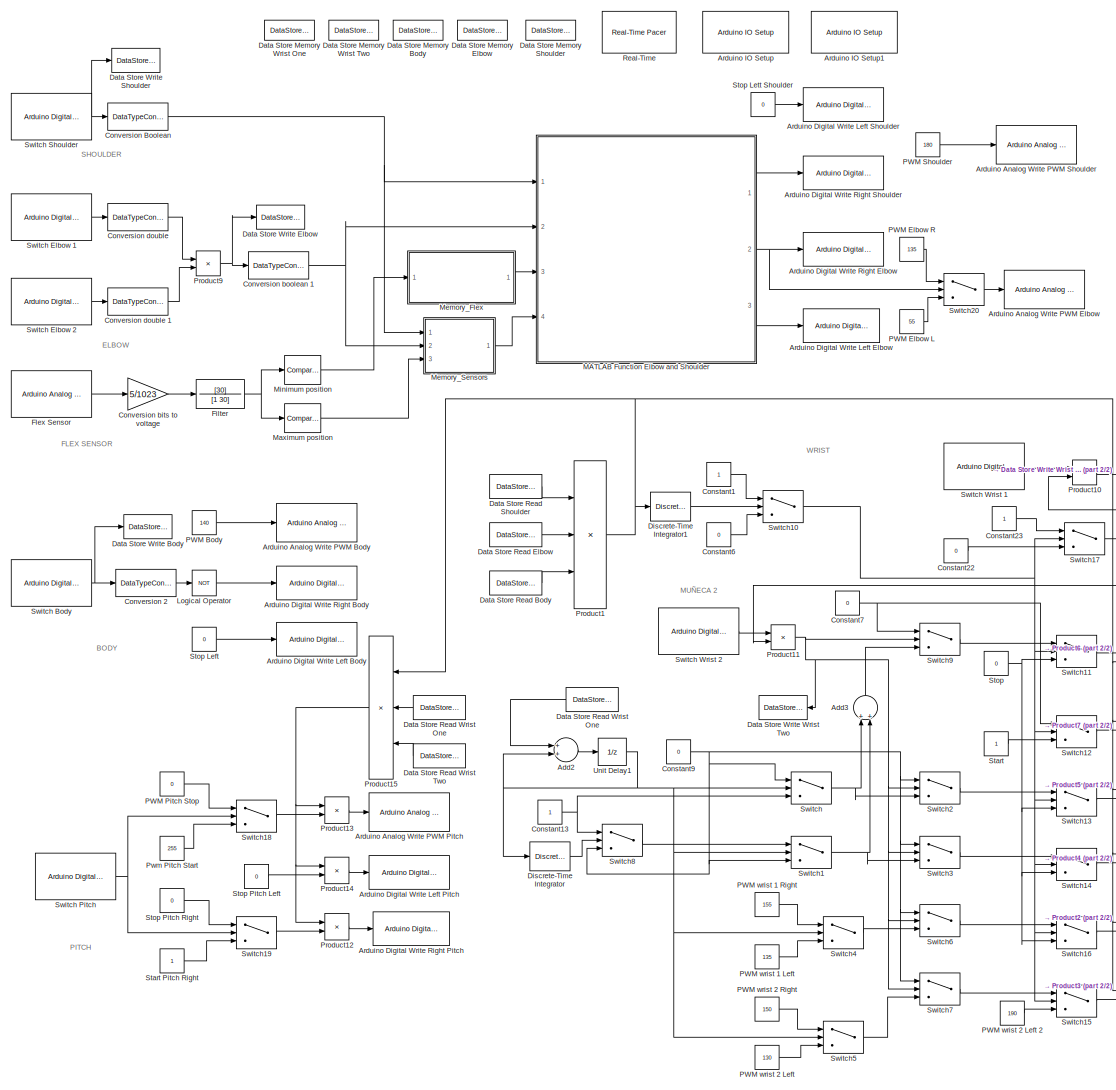
[diagram: root canvas - part 1/2, most of the canvas]
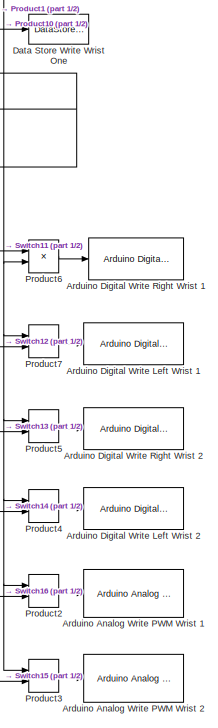
[diagram: root canvas - part 2/2, bottom right region]
MODEL slx_b9884430eb77
KIND model
CONFIG AbsTol = auto
CONFIG FixedStep = 0.002
CONFIG MaxStep = auto
CONFIG MinStep = auto
CONFIG RelTol = 1e-3
CONFIG SampleTimeConstraint = Unconstrained
CONFIG Solver = ode45
CONFIG SolverMode = Auto
CONFIG SolverName = ode45
CONFIG StartTime = 0.0
CONFIG StopTime = inf
BLOCK [Sum] Add2
  InputSameDT = off
  OutDataTypeStr = Inherit: Inherit via internal rule
  Ports = [2, 1]
  SaturateOnIntegerOverflow = off
BLOCK [Sum] Add3
  InputSameDT = off
  OutDataTypeStr = Inherit: Inherit via internal rule
  Ports = [2, 1]
  SaturateOnIntegerOverflow = off
BLOCK [Reference] Arduino Analog Write PWM Body  REF=arduino_io_lib/Arduino Analog Write
  Ports = [1]
  SourceBlock = arduino_io_lib/Arduino Analog Write
  SourceType = Arduino IO analog Write (PWM)
  T = Ts
  arduinoPin = 9
  arduinoVar = Temporary arduino variable: Arduino1
BLOCK [Reference] Arduino Analog Write PWM Elbow  REF=arduino_io_lib/Arduino Analog Write
  Ports = [1]
  SourceBlock = arduino_io_lib/Arduino Analog Write
  SourceType = Arduino IO analog Write (PWM)
  T = Ts
  arduinoPin = 11
  arduinoVar = Temporary arduino variable: Arduino1
BLOCK [Reference] Arduino Analog Write PWM Pitch  REF=arduino_io_lib/Arduino Analog Write
  Ports = [1]
  SourceBlock = arduino_io_lib/Arduino Analog Write
  SourceType = Arduino IO analog Write (PWM)
  T = Ts
  arduinoPin = 9
  arduinoVar = Temporary arduino variable: Arduino2
BLOCK [Reference] Arduino Analog Write PWM Shoulder  REF=arduino_io_lib/Arduino Analog Write
  Ports = [1]
  SourceBlock = arduino_io_lib/Arduino Analog Write
  SourceType = Arduino IO analog Write (PWM)
  T = Ts
  arduinoPin = 10
  arduinoVar = Temporary arduino variable: Arduino1
BLOCK [Reference] Arduino Analog Write PWM Wrist 1  REF=arduino_io_lib/Arduino Analog Write
  Ports = [1]
  SourceBlock = arduino_io_lib/Arduino Analog Write
  SourceType = Arduino IO analog Write (PWM)
  T = Ts
  arduinoPin = 11
  arduinoVar = Temporary arduino variable: Arduino2
BLOCK [Reference] Arduino Analog Write PWM Wrist 2  REF=arduino_io_lib/Arduino Analog Write
  Ports = [1]
  SourceBlock = arduino_io_lib/Arduino Analog Write
  SourceType = Arduino IO analog Write (PWM)
  T = Ts
  arduinoPin = 10
  arduinoVar = Temporary arduino variable: Arduino2
BLOCK [Reference] Arduino Digital Write Left Body  REF=arduino_io_lib/Arduino Digital Write
  Ports = [1]
  SourceBlock = arduino_io_lib/Arduino Digital Write
  SourceType = Arduino IO digital Write
  T = Ts
  arduinoPin = 7
  arduinoVar = Temporary arduino variable: Arduino1
BLOCK [Reference] Arduino Digital Write Left Elbow  REF=arduino_io_lib/Arduino Digital Write
  Ports = [1]
  SourceBlock = arduino_io_lib/Arduino Digital Write
  SourceType = Arduino IO digital Write
  T = Ts
  arduinoPin = 12
  arduinoVar = Temporary arduino variable: Arduino1
BLOCK [Reference] Arduino Digital Write Left Pitch  REF=arduino_io_lib/Arduino Digital Write
  Ports = [1]
  SourceBlock = arduino_io_lib/Arduino Digital Write
  SourceType = Arduino IO digital Write
  T = Ts
  arduinoPin = 6
  arduinoVar = Temporary arduino variable: Arduino2
BLOCK [Reference] Arduino Digital Write Left Shoulder  REF=arduino_io_lib/Arduino Digital Write
  Ports = [1]
  SourceBlock = arduino_io_lib/Arduino Digital Write
  SourceType = Arduino IO digital Write
  T = Ts
  arduinoPin = 5
  arduinoVar = Temporary arduino variable: Arduino1
BLOCK [Reference] Arduino Digital Write Left Wrist 1  REF=arduino_io_lib/Arduino Digital Write
  Ports = [1]
  SourceBlock = arduino_io_lib/Arduino Digital Write
  SourceType = Arduino IO digital Write
  T = Ts
  arduinoPin = 4
  arduinoVar = Temporary arduino variable: Arduino2
BLOCK [Reference] Arduino Digital Write Left Wrist 2  REF=arduino_io_lib/Arduino Digital Write
  Ports = [1]
  SourceBlock = arduino_io_lib/Arduino Digital Write
  SourceType = Arduino IO digital Write
  T = Ts
  arduinoPin = 13
  arduinoVar = Temporary arduino variable: Arduino2
BLOCK [Reference] Arduino Digital Write Right Body  REF=arduino_io_lib/Arduino Digital Write
  Ports = [1]
  SourceBlock = arduino_io_lib/Arduino Digital Write
  SourceType = Arduino IO digital Write
  T = Ts
  arduinoPin = 6
  arduinoVar = Temporary arduino variable: Arduino1
BLOCK [Reference] Arduino Digital Write Right Elbow  REF=arduino_io_lib/Arduino Digital Write
  Ports = [1]
  SourceBlock = arduino_io_lib/Arduino Digital Write
  SourceType = Arduino IO digital Write
  T = Ts
  arduinoPin = 13
  arduinoVar = Temporary arduino variable: Arduino1
BLOCK [Reference] Arduino Digital Write Right Pitch  REF=arduino_io_lib/Arduino Digital Write
  Ports = [1]
  SourceBlock = arduino_io_lib/Arduino Digital Write
  SourceType = Arduino IO digital Write
  T = Ts
  arduinoPin = 7
  arduinoVar = Temporary arduino variable: Arduino2
BLOCK [Reference] Arduino Digital Write Right Shoulder  REF=arduino_io_lib/Arduino Digital Write
  Ports = [1]
  SourceBlock = arduino_io_lib/Arduino Digital Write
  SourceType = Arduino IO digital Write
  T = Ts
  arduinoPin = 4
  arduinoVar = Temporary arduino variable: Arduino1
BLOCK [Reference] Arduino Digital Write Right Wrist 1  REF=arduino_io_lib/Arduino Digital Write
  Ports = [1]
  SourceBlock = arduino_io_lib/Arduino Digital Write
  SourceType = Arduino IO digital Write
  T = Ts
  arduinoPin = 5
  arduinoVar = Temporary arduino variable: Arduino2
BLOCK [Reference] Arduino Digital Write Right Wrist 2  REF=arduino_io_lib/Arduino Digital Write
  Ports = [1]
  SourceBlock = arduino_io_lib/Arduino Digital Write
  SourceType = Arduino IO digital Write
  T = Ts
  arduinoPin = 12
  arduinoVar = Temporary arduino variable: Arduino2
BLOCK [Reference] Arduino IO Setup   REF=arduino_io_lib/Arduino IO Setup
  Ports = []
  Priority = 3
  SourceBlock = arduino_io_lib/Arduino IO Setup
  SourceType = Arduino IO Setup
  arduinoVar = Temporary arduino variable: Arduino1
  comPort = COM9
  workspaceVarName = a
BLOCK [Reference] Arduino IO Setup1  REF=arduino_io_lib/Arduino IO Setup
  Ports = []
  Priority = 3
  SourceBlock = arduino_io_lib/Arduino IO Setup
  SourceType = Arduino IO Setup
  arduinoVar = Temporary arduino variable: Arduino2
  comPort = COM3
  workspaceVarName = a
BLOCK [Constant] Constant1
BLOCK [Constant] Constant13
BLOCK [Constant] Constant22
  Value = 0
BLOCK [Constant] Constant23
BLOCK [Constant] Constant6
  Value = 0
BLOCK [Constant] Constant7
  Value = 0
BLOCK [Constant] Constant9
  Value = 0
BLOCK [DataTypeConversion] Conversion 2 
  OutDataTypeStr = boolean
  RndMeth = Floor
  SaturateOnIntegerOverflow = off
BLOCK [DataTypeConversion] Conversion Boolean
  OutDataTypeStr = boolean
  RndMeth = Floor
  SaturateOnIntegerOverflow = off
BLOCK [Gain] Conversion bits to voltage
  Gain = 5/1023
  OutDataTypeStr = Inherit: Inherit via internal rule
  ParamDataTypeStr = Inherit: Inherit via internal rule
  SaturateOnIntegerOverflow = off
BLOCK [DataTypeConversion] Conversion boolean 1
  OutDataTypeStr = boolean
  RndMeth = Floor
  SaturateOnIntegerOverflow = off
BLOCK [DataTypeConversion] Conversion double
  OutDataTypeStr = double
  RndMeth = Floor
  SaturateOnIntegerOverflow = off
BLOCK [DataTypeConversion] Conversion double 1 
  OutDataTypeStr = double
  RndMeth = Floor
  SaturateOnIntegerOverflow = off
BLOCK [DataStoreMemory] Data Store Memory Body
  DataStoreName = Body
  ReadBeforeWriteMsg = warning
  ShowAdditionalParam = off
  WriteAfterReadMsg = warning
  WriteAfterWriteMsg = warning
BLOCK [DataStoreMemory] Data Store Memory Elbow
  DataStoreName = Elbow
  ReadBeforeWriteMsg = warning
  ShowAdditionalParam = off
  WriteAfterReadMsg = warning
  WriteAfterWriteMsg = warning
BLOCK [DataStoreMemory] Data Store Memory Shoulder
  DataStoreName = Shoulder
  ReadBeforeWriteMsg = warning
  ShowAdditionalParam = off
  WriteAfterReadMsg = warning
  WriteAfterWriteMsg = warning
BLOCK [DataStoreMemory] Data Store Memory Wrist One
  DataStoreName = Wrist_One
  ReadBeforeWriteMsg = warning
  ShowAdditionalParam = off
  WriteAfterReadMsg = warning
  WriteAfterWriteMsg = warning
BLOCK [DataStoreMemory] Data Store Memory Wrist Two
  DataStoreName = Wrist_Two
  ReadBeforeWriteMsg = warning
  ShowAdditionalParam = off
  WriteAfterReadMsg = warning
  WriteAfterWriteMsg = warning
BLOCK [DataStoreRead] Data Store Read Body
  DataStoreName = Body
  Ports = [0, 1]
BLOCK [DataStoreRead] Data Store Read Elbow
  DataStoreName = Elbow
  Ports = [0, 1]
BLOCK [DataStoreRead] Data Store Read Shoulder
  DataStoreName = Shoulder
  Ports = [0, 1]
BLOCK [DataStoreRead] Data Store Read Wrist One
  DataStoreName = Wrist_One
  Ports = [0, 1]
BLOCK [DataStoreRead] Data Store Read Wrist One 
  DataStoreName = Wrist_One
  Ports = [0, 1]
BLOCK [DataStoreRead] Data Store Read Wrist Two
  DataStoreName = Wrist_Two
  Ports = [0, 1]
BLOCK [DataStoreWrite] Data Store Write Body
  DataStoreName = Body
  Ports = [1]
BLOCK [DataStoreWrite] Data Store Write Elbow
  DataStoreName = Elbow
  Ports = [1]
BLOCK [DataStoreWrite] Data Store Write Shoulder
  DataStoreName = Shoulder
  Ports = [1]
BLOCK [DataStoreWrite] Data Store Write Wrist One
  DataStoreName = Wrist_One
  Ports = [1]
BLOCK [DataStoreWrite] Data Store Write Wrist Two 
  DataStoreName = Wrist_Two
  Ports = [1]
BLOCK [DiscreteIntegrator] Discrete-Time Integrator
  ICPrevOutput = DiscIntNeverNeededParam
  ICPrevScaledInput = DiscIntNeverNeededParam
  InitialConditionSetting = State (most efficient)
  LimitOutput = on
  Ports = [1, 1]
  SampleTime = Ts
  UpperSaturationLimit = 15
BLOCK [DiscreteIntegrator] Discrete-Time Integrator1
  ICPrevOutput = DiscIntNeverNeededParam
  ICPrevScaledInput = DiscIntNeverNeededParam
  InitialConditionSetting = State (most efficient)
  LimitOutput = on
  Ports = [1, 1]
  SampleTime = Ts
  UpperSaturationLimit = 15
BLOCK [TransferFcn] Filter 
  Denominator = [1 30]
  Numerator = [30]
BLOCK [Reference] Flex Sensor   REF=arduino_io_lib/Arduino Analog Read
  Ports = [0, 1]
  SourceBlock = arduino_io_lib/Arduino Analog Read
  SourceType = Arduino IO Analog Read
  T = Ts
  arduinoPin = 1
  arduinoVar = Temporary arduino variable: Arduino2
BLOCK [Logic] Logical Operator
  AllPortsSameDT = off
  Operator = NOT
  OutDataTypeStr = boolean
  Ports = [1, 1]
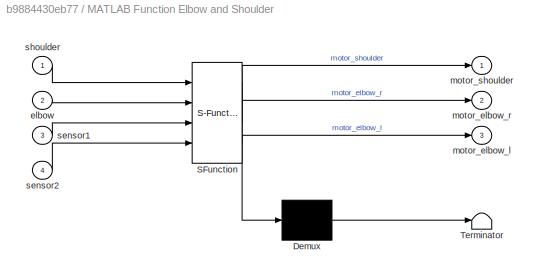
BLOCK [SubSystem] MATLAB Function Elbow and Shoulder
  ErrorFcn = Stateflow.Translate.translate
  PermitHierarchicalResolution = ParametersOnly
  Ports = [4, 3]
  RequestExecContextInheritance = off
  SFBlockType = MATLAB Function
  TreatAsAtomicUnit = on
  Variant = off
BLOCK [Demux] MATLAB Function Elbow and Shoulder/ Demux 
  Outputs = 1
  Ports = [1, 1]
BLOCK [S-Function] MATLAB Function Elbow and Shoulder/ SFunction 
  EnableBusSupport = on
  FunctionName = sf_sfun
  PortCounts = [4 4]
  Ports = [4, 4]
  SFunctionDeploymentMode = off
  Tag = Stateflow S-Function Starting_Position_2015A 1
BLOCK [Terminator] MATLAB Function Elbow and Shoulder/ Terminator 
BLOCK [Inport] MATLAB Function Elbow and Shoulder/elbow
  IconDisplay = Port number
  Port = 2
BLOCK [Outport] MATLAB Function Elbow and Shoulder/motor_elbow_l
  IconDisplay = Port number
  Port = 3
BLOCK [Outport] MATLAB Function Elbow and Shoulder/motor_elbow_r
  IconDisplay = Port number
  Port = 2
BLOCK [Outport] MATLAB Function Elbow and Shoulder/motor_shoulder
  IconDisplay = Port number
BLOCK [Inport] MATLAB Function Elbow and Shoulder/sensor1
  IconDisplay = Port number
  Port = 3
BLOCK [Inport] MATLAB Function Elbow and Shoulder/sensor2
  IconDisplay = Port number
  Port = 4
BLOCK [Inport] MATLAB Function Elbow and Shoulder/shoulder
  IconDisplay = Port number
BLOCK [Reference] Maximum position  REF=simulink/Logic and Bit
Operations/Compare
To Constant
  OutDataTypeStr = boolean
  Ports = [1, 1]
  SourceBlock = simulink/Logic and Bit\nOperations/Compare\nTo Constant
  SourceType = Compare To Constant
  ZeroCross = on
  const = 2.15
  relop = >=
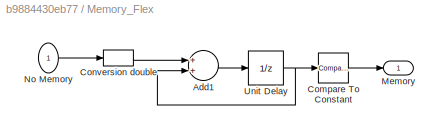
BLOCK [SubSystem] Memory_Flex 
  Ports = [1, 1]
  RequestExecContextInheritance = off
  Variant = off
BLOCK [Sum] Memory_Flex /Add1
  InputSameDT = off
  OutDataTypeStr = Inherit: Inherit via internal rule
  Ports = [2, 1]
  SaturateOnIntegerOverflow = off
BLOCK [Reference] Memory_Flex /Compare To Constant  REF=simulink/Logic and Bit
Operations/Compare
To Constant
  OutDataTypeStr = boolean
  Ports = [1, 1]
  SourceBlock = simulink/Logic and Bit\nOperations/Compare\nTo Constant
  SourceType = Compare To Constant
  ZeroCross = on
  const = 1
  relop = >=
BLOCK [DataTypeConversion] Memory_Flex /Conversion double
  OutDataTypeStr = double
  RndMeth = Floor
  SaturateOnIntegerOverflow = off
BLOCK [Outport] Memory_Flex /Memory 
  IconDisplay = Port number
BLOCK [Inport] Memory_Flex /No Memory
  IconDisplay = Port number
BLOCK [UnitDelay] Memory_Flex /Unit Delay
  InputProcessing = Elements as channels (sample based)
  SampleTime = Ts
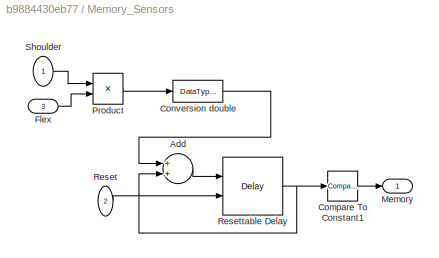
BLOCK [SubSystem] Memory_Sensors
  Ports = [3, 1]
  RequestExecContextInheritance = off
  Variant = off
BLOCK [Sum] Memory_Sensors/Add
  InputSameDT = off
  OutDataTypeStr = Inherit: Inherit via internal rule
  Ports = [2, 1]
  SaturateOnIntegerOverflow = off
BLOCK [Reference] Memory_Sensors/Compare To Constant1  REF=simulink/Logic and Bit
Operations/Compare
To Constant
  OutDataTypeStr = boolean
  Ports = [1, 1]
  SourceBlock = simulink/Logic and Bit\nOperations/Compare\nTo Constant
  SourceType = Compare To Constant
  ZeroCross = on
  const = 1
  relop = >=
BLOCK [DataTypeConversion] Memory_Sensors/Conversion double 
  OutDataTypeStr = double
  RndMeth = Floor
  SaturateOnIntegerOverflow = off
BLOCK [Inport] Memory_Sensors/Flex
  IconDisplay = Port number
  Port = 3
BLOCK [Outport] Memory_Sensors/Memory
  IconDisplay = Port number
BLOCK [Product] Memory_Sensors/Product
  InputSameDT = off
  OutDataTypeStr = Inherit: Inherit via internal rule
  Ports = [2, 1]
  RndMeth = Floor
  SaturateOnIntegerOverflow = off
BLOCK [Inport] Memory_Sensors/Reset
  IconDisplay = Port number
  Port = 2
BLOCK [Delay] Memory_Sensors/Resettable Delay
  DelayLength = 1
  ExternalReset = Rising
  InputPortMap = u0,r5
  Ports = [2, 1]
  SampleTime = Ts
BLOCK [Inport] Memory_Sensors/Shoulder
  IconDisplay = Port number
BLOCK [Reference] Minimum position  REF=simulink/Logic and Bit
Operations/Compare
To Constant
  OutDataTypeStr = boolean
  Ports = [1, 1]
  SourceBlock = simulink/Logic and Bit\nOperations/Compare\nTo Constant
  SourceType = Compare To Constant
  ZeroCross = on
  const = 2.65
  relop = >=
BLOCK [Constant] PWM Body
  Value = 140
BLOCK [Constant] PWM Elbow L
  Value = 55
BLOCK [Constant] PWM Elbow R
  Value = 135
BLOCK [Constant] PWM Pitch Stop
  Value = 0
BLOCK [Constant] PWM Shoulder
  Value = 180
BLOCK [Constant] PWM wrist 1 Left
  Value = 135
BLOCK [Constant] PWM wrist 1 Right
  Value = 155
BLOCK [Constant] PWM wrist 2 Left
  Value = 130
BLOCK [Constant] PWM wrist 2 Left 2
  Value = 190
BLOCK [Constant] PWM wrist 2 Right
  Value = 150
BLOCK [Product] Product1
  InputSameDT = off
  Inputs = 3
  OutDataTypeStr = Inherit: Inherit via internal rule
  Ports = [3, 1]
  RndMeth = Floor
  SaturateOnIntegerOverflow = off
BLOCK [Product] Product10
  InputSameDT = off
  OutDataTypeStr = Inherit: Inherit via internal rule
  Ports = [2, 1]
  RndMeth = Floor
  SaturateOnIntegerOverflow = off
BLOCK [Product] Product11
  InputSameDT = off
  OutDataTypeStr = Inherit: Inherit via internal rule
  Ports = [2, 1]
  RndMeth = Floor
  SaturateOnIntegerOverflow = off
BLOCK [Product] Product12
  InputSameDT = off
  OutDataTypeStr = Inherit: Inherit via internal rule
  Ports = [2, 1]
  RndMeth = Floor
  SaturateOnIntegerOverflow = off
BLOCK [Product] Product13
  InputSameDT = off
  OutDataTypeStr = Inherit: Inherit via internal rule
  Ports = [2, 1]
  RndMeth = Floor
  SaturateOnIntegerOverflow = off
BLOCK [Product] Product14
  InputSameDT = off
  OutDataTypeStr = Inherit: Inherit via internal rule
  Ports = [2, 1]
  RndMeth = Floor
  SaturateOnIntegerOverflow = off
BLOCK [Product] Product15
  InputSameDT = off
  Inputs = 3
  OutDataTypeStr = Inherit: Inherit via internal rule
  Ports = [3, 1]
  RndMeth = Floor
  SaturateOnIntegerOverflow = off
BLOCK [Product] Product2
  InputSameDT = off
  OutDataTypeStr = Inherit: Inherit via internal rule
  Ports = [2, 1]
  RndMeth = Floor
  SaturateOnIntegerOverflow = off
BLOCK [Product] Product3
  InputSameDT = off
  OutDataTypeStr = Inherit: Inherit via internal rule
  Ports = [2, 1]
  RndMeth = Floor
  SaturateOnIntegerOverflow = off
BLOCK [Product] Product4
  InputSameDT = off
  OutDataTypeStr = Inherit: Inherit via internal rule
  Ports = [2, 1]
  RndMeth = Floor
  SaturateOnIntegerOverflow = off
BLOCK [Product] Product5
  InputSameDT = off
  OutDataTypeStr = Inherit: Inherit via internal rule
  Ports = [2, 1]
  RndMeth = Floor
  SaturateOnIntegerOverflow = off
BLOCK [Product] Product6
  InputSameDT = off
  OutDataTypeStr = Inherit: Inherit via internal rule
  Ports = [2, 1]
  RndMeth = Floor
  SaturateOnIntegerOverflow = off
BLOCK [Product] Product7
  InputSameDT = off
  OutDataTypeStr = Inherit: Inherit via internal rule
  Ports = [2, 1]
  RndMeth = Floor
  SaturateOnIntegerOverflow = off
BLOCK [Product] Product9
  InputSameDT = off
  OutDataTypeStr = Inherit: Inherit via internal rule
  Ports = [2, 1]
  RndMeth = Floor
  SaturateOnIntegerOverflow = off
BLOCK [Constant] Pwm Pitch Start
  Value = 255
BLOCK [Reference] Real-Time   REF=arduino_io_lib/Real-Time Pacer
  Ports = []
  SourceBlock = arduino_io_lib/Real-Time Pacer
  SourceType = RealTime_Pacer
  simTimePerRealTime = 1
BLOCK [Constant] Start
BLOCK [Constant] Start Pitch Right
BLOCK [Constant] Stop
  Value = 0
BLOCK [Constant] Stop Left
  Value = 0
BLOCK [Constant] Stop Lett Shoulder
  Value = 0
BLOCK [Constant] Stop Pitch Left 
  Value = 0
BLOCK [Constant] Stop Pitch Right
  Value = 0
BLOCK [Switch] Switch
  Criteria = u2 > Threshold
  InputSameDT = off
  SaturateOnIntegerOverflow = off
  Threshold = 0.9
BLOCK [Reference] Switch Body  REF=arduino_io_lib/Arduino Digital Read
  Ports = [0, 1]
  SourceBlock = arduino_io_lib/Arduino Digital Read
  SourceType = Arduino IO digital read
  T = Ts
  arduinoPin = 28
  arduinoVar = Temporary arduino variable: Arduino2
BLOCK [Reference] Switch Elbow 1  REF=arduino_io_lib/Arduino Digital Read
  Ports = [0, 1]
  SourceBlock = arduino_io_lib/Arduino Digital Read
  SourceType = Arduino IO digital read
  T = Ts
  arduinoPin = 22
  arduinoVar = Temporary arduino variable: Arduino2
BLOCK [Reference] Switch Elbow 2  REF=arduino_io_lib/Arduino Digital Read
  Ports = [0, 1]
  SourceBlock = arduino_io_lib/Arduino Digital Read
  SourceType = Arduino IO digital read
  T = Ts
  arduinoPin = 24
  arduinoVar = Temporary arduino variable: Arduino2
BLOCK [Reference] Switch Pitch   REF=arduino_io_lib/Arduino Digital Read
  Ports = [0, 1]
  SourceBlock = arduino_io_lib/Arduino Digital Read
  SourceType = Arduino IO digital read
  T = Ts
  arduinoPin = 34
  arduinoVar = Temporary arduino variable: Arduino2
BLOCK [Reference] Switch Shoulder  REF=arduino_io_lib/Arduino Digital Read
  Ports = [0, 1]
  SourceBlock = arduino_io_lib/Arduino Digital Read
  SourceType = Arduino IO digital read
  T = Ts
  arduinoPin = 26
  arduinoVar = Temporary arduino variable: Arduino2
BLOCK [Reference] Switch Wrist 1   REF=arduino_io_lib/Arduino Digital Read
  Ports = [0, 1]
  SourceBlock = arduino_io_lib/Arduino Digital Read
  SourceType = Arduino IO digital read
  T = Ts
  arduinoPin = 32
  arduinoVar = Temporary arduino variable: Arduino2
BLOCK [Reference] Switch Wrist 2   REF=arduino_io_lib/Arduino Digital Read
  Ports = [0, 1]
  SourceBlock = arduino_io_lib/Arduino Digital Read
  SourceType = Arduino IO digital read
  T = Ts
  arduinoPin = 30
  arduinoVar = Temporary arduino variable: Arduino2
BLOCK [Switch] Switch1
  Criteria = u2 > Threshold
  InputSameDT = off
  SaturateOnIntegerOverflow = off
  Threshold = 0.9
BLOCK [Switch] Switch10
  Criteria = u2 > Threshold
  InputSameDT = off
  SaturateOnIntegerOverflow = off
  Threshold = 1
BLOCK [Switch] Switch11
  Criteria = u2 > Threshold
  InputSameDT = off
  SaturateOnIntegerOverflow = off
  Threshold = 0.9
BLOCK [Switch] Switch12
  Criteria = u2 > Threshold
  InputSameDT = off
  SaturateOnIntegerOverflow = off
  Threshold = 0.9
BLOCK [Switch] Switch13
  Criteria = u2 > Threshold
  InputSameDT = off
  SaturateOnIntegerOverflow = off
  Threshold = 0.9
BLOCK [Switch] Switch14
  Criteria = u2 > Threshold
  InputSameDT = off
  SaturateOnIntegerOverflow = off
  Threshold = 0.9
BLOCK [Switch] Switch15
  Criteria = u2 > Threshold
  InputSameDT = off
  SaturateOnIntegerOverflow = off
  Threshold = 0.9
BLOCK [Switch] Switch16
  Criteria = u2 > Threshold
  InputSameDT = off
  SaturateOnIntegerOverflow = off
  Threshold = 0.9
BLOCK [Switch] Switch17
  Criteria = u2 > Threshold
  InputSameDT = off
  SaturateOnIntegerOverflow = off
  Threshold = 0.9
BLOCK [Switch] Switch18
  Criteria = u2 > Threshold
  InputSameDT = off
  SaturateOnIntegerOverflow = off
  Threshold = 0.9
BLOCK [Switch] Switch19
  Criteria = u2 > Threshold
  InputSameDT = off
  SaturateOnIntegerOverflow = off
  Threshold = 0.9
BLOCK [Switch] Switch2
  Criteria = u2 > Threshold
  InputSameDT = off
  SaturateOnIntegerOverflow = off
  Threshold = 0.9
BLOCK [Switch] Switch20
  Criteria = u2 > Threshold
  InputSameDT = off
  SaturateOnIntegerOverflow = off
BLOCK [Switch] Switch3
  Criteria = u2 > Threshold
  InputSameDT = off
  SaturateOnIntegerOverflow = off
  Threshold = 0.9
BLOCK [Switch] Switch4
  Criteria = u2 > Threshold
  InputSameDT = off
  SaturateOnIntegerOverflow = off
  Threshold = 0.9
BLOCK [Switch] Switch5
  Criteria = u2 > Threshold
  InputSameDT = off
  SaturateOnIntegerOverflow = off
  Threshold = 0.9
BLOCK [Switch] Switch6
  Criteria = u2 > Threshold
  InputSameDT = off
  SaturateOnIntegerOverflow = off
  Threshold = 0.9
BLOCK [Switch] Switch7
  Criteria = u2 > Threshold
  InputSameDT = off
  SaturateOnIntegerOverflow = off
  Threshold = 0.9
BLOCK [Switch] Switch8
  Criteria = u2 > Threshold
  InputSameDT = off
  SaturateOnIntegerOverflow = off
  Threshold = 7
BLOCK [Switch] Switch9
  Criteria = u2 > Threshold
  InputSameDT = off
  SaturateOnIntegerOverflow = off
  Threshold = 0.9
BLOCK [UnitDelay] Unit Delay1
  InputProcessing = Elements as channels (sample based)
  SampleTime = Ts
ANNOTATION (root): ELBOW
ANNOTATION (root): SHOULDER
ANNOTATION (root): BODY
ANNOTATION (root): FLEX SENSOR
ANNOTATION (root): PITCH
ANNOTATION (root): WRIST
ANNOTATION (root): MUÑECA 2
LINE Add2:1 -> Unit Delay1:1
LINE Add3:1 -> Switch9:3
NET Constant13:1 -> Switch8:1, Switch:3
LINE Constant1:1 -> Switch10:1
LINE Constant22:1 -> Switch17:3
LINE Constant23:1 -> Switch17:1
LINE Constant6:1 -> Switch10:3
NET Constant7:1 -> Switch12:1, Switch9:1
NET Constant9:1 -> Switch1:3, Switch2:1, Switch3:1, Switch6:1, Switch7:1, Switch8:3, Switch:1
LINE Conversion 2 :1 -> Logical Operator:1
NET Conversion Boolean:1 -> MATLAB Function Elbow and Shoulder:1, Memory_Sensors:1
LINE Conversion bits to voltage:1 -> Filter :1
NET Conversion boolean 1:1 -> MATLAB Function Elbow and Shoulder:2, Memory_Sensors:2
LINE Conversion double 1 :1 -> Product9:2
LINE Conversion double:1 -> Product9:1
LINE Data Store Read Body:1 -> Product1:3
LINE Data Store Read Elbow:1 -> Product1:2
LINE Data Store Read Shoulder:1 -> Product1:1
LINE Data Store Read Wrist One :1 -> Add2:1
LINE Data Store Read Wrist One:1 -> Product15:2
LINE Data Store Read Wrist Two:1 -> Product15:3
LINE Discrete-Time Integrator1:1 -> Switch10:2
LINE Discrete-Time Integrator:1 -> Switch8:2
NET Filter :1 -> Maximum position:1, Minimum position:1
LINE Flex Sensor :1 -> Conversion bits to voltage:1
LINE Logical Operator:1 -> Arduino Digital Write Right Body:1
LINE MATLAB Function Elbow and Shoulder:1 -> Arduino Digital Write Right Shoulder:1
NET MATLAB Function Elbow and Shoulder:2 -> Arduino Digital Write Right Elbow:1, Switch20:2
LINE MATLAB Function Elbow and Shoulder:3 -> Arduino Digital Write Left Elbow:1
LINE Maximum position:1 -> Memory_Sensors:3
LINE Memory_Flex /Add1:1 -> Memory_Flex /Unit Delay:1
LINE Memory_Flex /Compare To Constant:1 -> Memory_Flex /Memory :1
LINE Memory_Flex /Conversion double:1 -> Memory_Flex /Add1:1
LINE Memory_Flex /No Memory:1 -> Memory_Flex /Conversion double:1
NET Memory_Flex /Unit Delay:1 -> Memory_Flex /Add1:2, Memory_Flex /Compare To Constant:1
LINE Memory_Flex :1 -> MATLAB Function Elbow and Shoulder:3
LINE Memory_Sensors/Add:1 -> Memory_Sensors/Resettable Delay:1
LINE Memory_Sensors/Compare To Constant1:1 -> Memory_Sensors/Memory:1
LINE Memory_Sensors/Conversion double :1 -> Memory_Sensors/Add:1
LINE Memory_Sensors/Flex:1 -> Memory_Sensors/Product:2
LINE Memory_Sensors/Product:1 -> Memory_Sensors/Conversion double :1
LINE Memory_Sensors/Reset:1 -> Memory_Sensors/Resettable Delay:2
NET Memory_Sensors/Resettable Delay:1 -> Memory_Sensors/Add:2, Memory_Sensors/Compare To Constant1:1
LINE Memory_Sensors/Shoulder:1 -> Memory_Sensors/Product:1
LINE Memory_Sensors:1 -> MATLAB Function Elbow and Shoulder:4
LINE Minimum position:1 -> Memory_Flex :1
LINE PWM Body:1 -> Arduino Analog Write PWM Body:1
LINE PWM Elbow L:1 -> Switch20:3
LINE PWM Elbow R:1 -> Switch20:1
LINE PWM Pitch Stop:1 -> Switch18:1
LINE PWM Shoulder:1 -> Arduino Analog Write PWM Shoulder:1
LINE PWM wrist 1 Left:1 -> Switch4:3
LINE PWM wrist 1 Right:1 -> Switch4:1
LINE PWM wrist 2 Left 2:1 -> Switch15:3
LINE PWM wrist 2 Left:1 -> Switch5:3
LINE PWM wrist 2 Right:1 -> Switch5:1
LINE Product10:1 -> Data Store Write Wrist One:1
NET Product11:1 -> Data Store Write Wrist Two :1, Switch2:2, Switch3:2, Switch6:2, Switch7:2, Switch9:2
LINE Product12:1 -> Arduino Digital Write Right Pitch:1
LINE Product13:1 -> Arduino Analog Write PWM Pitch:1
LINE Product14:1 -> Arduino Digital Write Left Pitch:1
NET Product15:1 -> Product12:1, Product13:1, Product14:1
NET Product1:1 -> Discrete-Time Integrator1:1, Product15:1, Product2:1, Product3:1, Product4:1, Product5:1, Product6:2, Product7:1
LINE Product2:1 -> Arduino Analog Write PWM Wrist 1:1
LINE Product3:1 -> Arduino Analog Write PWM Wrist 2:1
LINE Product4:1 -> Arduino Digital Write Left Wrist 2:1
LINE Product5:1 -> Arduino Digital Write Right Wrist 2:1
LINE Product6:1 -> Arduino Digital Write Right Wrist 1:1
LINE Product7:1 -> Arduino Digital Write Left Wrist 1:1
NET Product9:1 -> Conversion boolean 1:1, Data Store Write Elbow:1
LINE Pwm Pitch Start:1 -> Switch18:3
LINE Start Pitch Right:1 -> Switch19:3
LINE Start:1 -> Switch12:3
LINE Stop Left:1 -> Arduino Digital Write Left Body:1
LINE Stop Lett Shoulder:1 -> Arduino Digital Write Left Shoulder:1
LINE Stop Pitch Left :1 -> Product14:2
LINE Stop Pitch Right:1 -> Switch19:1
NET Stop:1 -> Switch11:3, Switch13:3, Switch14:3, Switch16:3
NET Switch Body:1 -> Conversion 2 :1, Data Store Write Body:1
LINE Switch Elbow 1:1 -> Conversion double:1
LINE Switch Elbow 2:1 -> Conversion double 1 :1
NET Switch Pitch :1 -> Switch18:2, Switch19:2
NET Switch Shoulder:1 -> Conversion Boolean:1, Data Store Write Shoulder:1
LINE Switch Wrist 1 :1 -> Product10:1
LINE Switch Wrist 2 :1 -> Product11:1
NET Switch10:1 -> Switch11:2, Switch12:2, Switch13:2, Switch14:2, Switch15:2, Switch16:2, Switch17:2
LINE Switch11:1 -> Product6:1
LINE Switch12:1 -> Product7:2
LINE Switch13:1 -> Product5:2
LINE Switch14:1 -> Product4:2
LINE Switch15:1 -> Product3:2
LINE Switch16:1 -> Product2:2
NET Switch17:1 -> Product10:2, Product11:2
LINE Switch18:1 -> Product13:2
LINE Switch19:1 -> Product12:2
NET Switch1:1 -> Add3:2, Switch3:3
LINE Switch20:1 -> Arduino Analog Write PWM Elbow:1
LINE Switch2:1 -> Switch13:1
LINE Switch3:1 -> Switch14:1
LINE Switch4:1 -> Switch6:3
LINE Switch5:1 -> Switch7:3
LINE Switch6:1 -> Switch16:1
LINE Switch7:1 -> Switch15:1
LINE Switch8:1 -> Switch1:1
LINE Switch9:1 -> Switch11:1
NET Switch:1 -> Add3:1, Switch2:3
NET Unit Delay1:1 -> Add2:2, Discrete-Time Integrator:1, Switch1:2, Switch4:2, Switch5:2, Switch:2
note: NET lines group one-source signal fan-out (src -> all destinations, sorted); 1:1 wires keep LINE
CHART MATLAB Function Elbow and Shoulder states=1 transitions=1
  STATE_LABEL 'eML_blk_kernel()'
  STATE_LABEL 'SCRIPT:\nfunction [motor_shoulder,motor_elbow_r,motor_elbow_l]= fcn(shoulder,elbow,sensor1,sensor2)\n%#codegen\nmotor_shoulder = 0;\nmotor_elbow_r = 0;\nmotor_elbow_l = 0;\n\n%Conditional\nif (shoulder==0 && sensor1==0)\n  motor_shoulder = 0;\n  motor_elbow_r = 1;\n  motor_elbow_l = 0;\nelseif (shoulder==0 && sensor1==1)\n  motor_shoulder = 1;\n  motor_elbow_r = 0;\n  motor_elbow_l = 0;\nelseif (shoulder==1 && el...<+312ch>'
